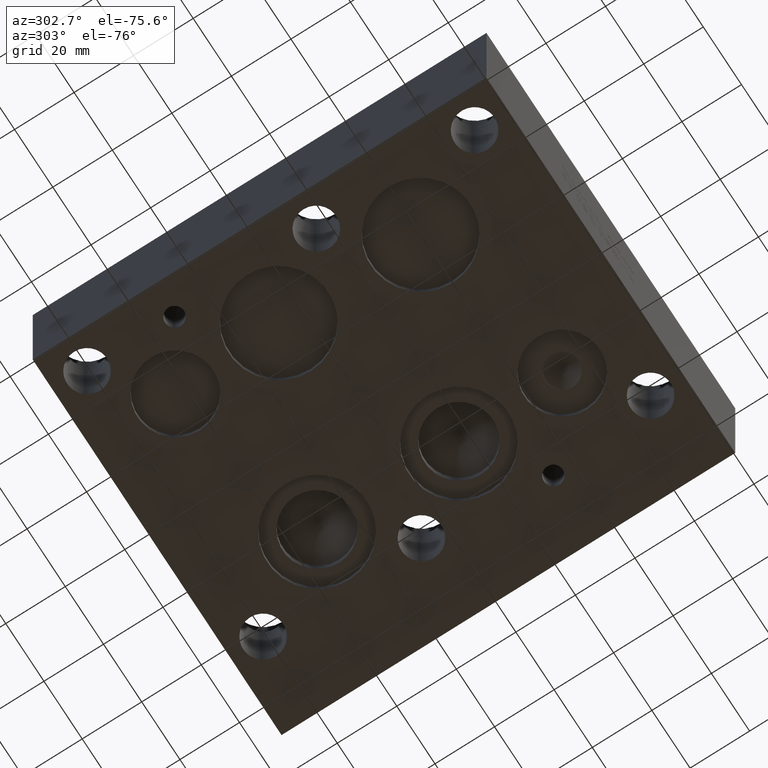
[diagram: clean part render]
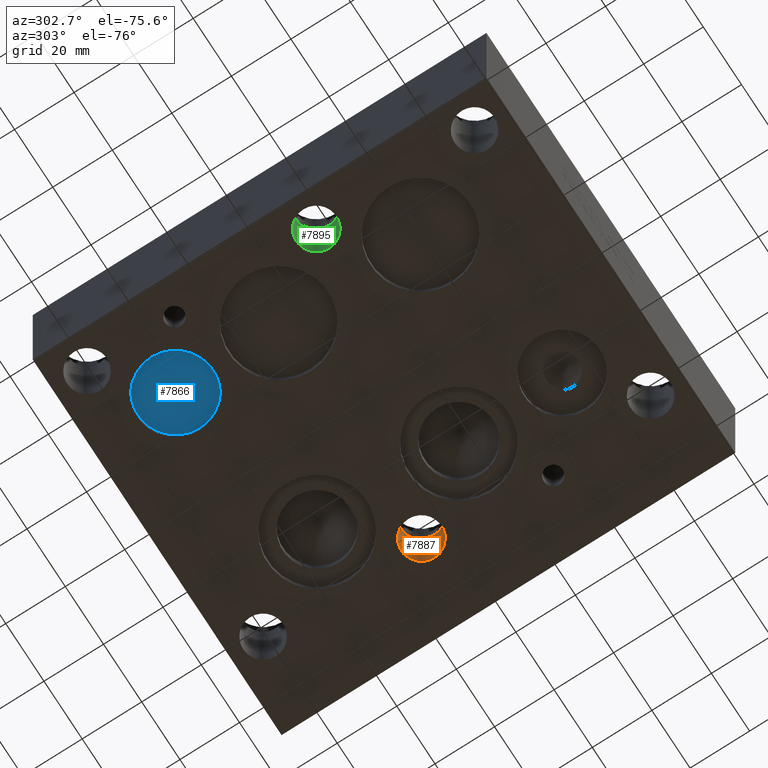
[diagram: same view with three faces highlighted in distinct colors, each labeled with its STEP entity id]
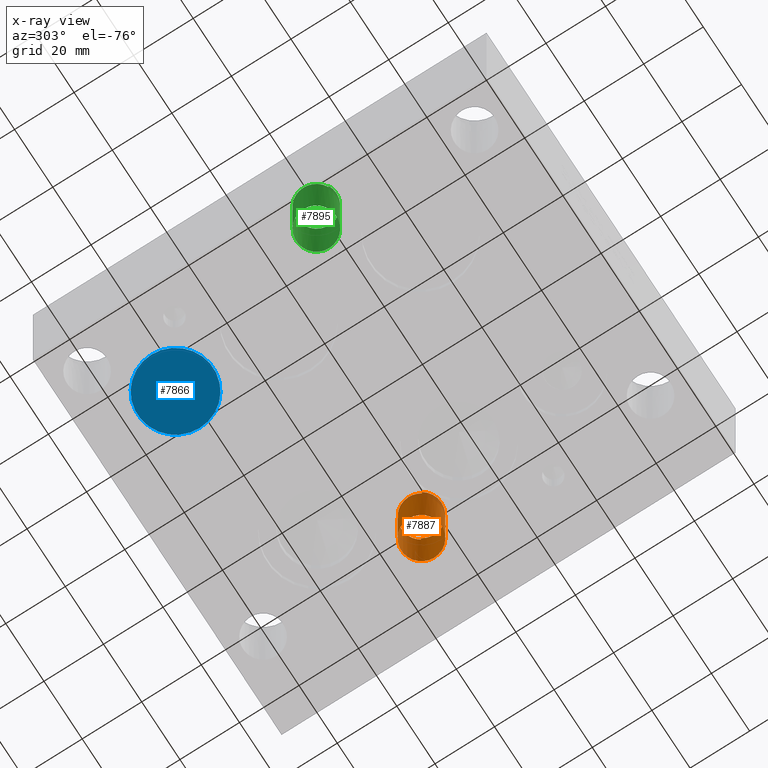
[diagram: x-ray of the same camera — body ghosted, the three highlighted faces saturated]
A machine part, auxiliary view with three faces highlighted in distinct colors.
The next image is the same camera in x-ray (body ghosted, the three faces saturated) — at least one of them is partly hidden behind the body in this view.
Their STEP definitions:

[orange] entity #7887 — the highlighted cylindrical surface (bore or boss wall) has radius 6.7437 mm, axis along (0, 0, -1).
#26=CYLINDRICAL_SURFACE('',#8256,6.7437);
#101=CIRCLE('',#8257,6.7437);
#102=CIRCLE('',#8258,6.7437);
#103=CIRCLE('',#8259,6.7437);
#428=B_SPLINE_CURVE_WITH_KNOTS('',3,(#13236,#13237,#13238,#13239,#13240,
#13241),.UNSPECIFIED.,.F.,.F.,(4,2,4),(1.65477532848342,1.77818492644608,
2.03221161432171),.UNSPECIFIED.);
#429=B_SPLINE_CURVE_WITH_KNOTS('',3,(#13248,#13249,#13250,#13251,#13252,
#13253,#13254,#13255,#13256,#13257,#13258,#13259,#13260,#13261,#13262,#13263),
 .UNSPECIFIED.,.F.,.F.,(4,2,2,2,2,2,2,4),(2.03221161432171,2.28623804041012,
2.54026446649852,2.79429068405573,3.04831690161294,3.30234338266778,3.55636986372263,
3.68480439977182),.UNSPECIFIED.);
#945=FACE_OUTER_BOUND('',#1383,.T.);
#1383=EDGE_LOOP('',(#6612,#6613,#6614,#6615,#6616,#6617,#6618,#6619,#6620));
#2168=LINE('',#13234,#2905);
#2169=LINE('',#13243,#2906);
#2170=LINE('',#13247,#2907);
#2905=VECTOR('',#9701,6.7437);
#2906=VECTOR('',#9702,10.);
#2907=VECTOR('',#9705,10.);
#3581=VERTEX_POINT('',#13229);
#3582=VERTEX_POINT('',#13230);
#3583=VERTEX_POINT('',#13233);
#3584=VERTEX_POINT('',#13235);
#3585=VERTEX_POINT('',#13242);
#3586=VERTEX_POINT('',#13244);
#3587=VERTEX_POINT('',#13246);
#4632=EDGE_CURVE('',#3581,#3582,#101,.T.);
#4633=EDGE_CURVE('',#3582,#3581,#102,.T.);
#4634=EDGE_CURVE('',#3582,#3583,#2168,.T.);
#4635=EDGE_CURVE('',#3584,#3583,#428,.T.);
#4636=EDGE_CURVE('',#3585,#3584,#2169,.T.);
#4637=EDGE_CURVE('',#3586,#3585,#103,.T.);
#4638=EDGE_CURVE('',#3587,#3586,#2170,.T.);
#4639=EDGE_CURVE('',#3583,#3587,#429,.T.);
#6612=ORIENTED_EDGE('',*,*,#4632,.F.);
#6613=ORIENTED_EDGE('',*,*,#4633,.F.);
#6614=ORIENTED_EDGE('',*,*,#4634,.T.);
#6615=ORIENTED_EDGE('',*,*,#4635,.F.);
#6616=ORIENTED_EDGE('',*,*,#4636,.F.);
#6617=ORIENTED_EDGE('',*,*,#4637,.F.);
#6618=ORIENTED_EDGE('',*,*,#4638,.F.);
#6619=ORIENTED_EDGE('',*,*,#4639,.F.);
#6620=ORIENTED_EDGE('',*,*,#4634,.F.);
#7887=ADVANCED_FACE('',(#945),#26,.F.);
#8256=AXIS2_PLACEMENT_3D('',#13228,#9695,#9696);
#8257=AXIS2_PLACEMENT_3D('',#13231,#9697,#9698);
#8258=AXIS2_PLACEMENT_3D('',#13232,#9699,#9700);
#8259=AXIS2_PLACEMENT_3D('',#13245,#9703,#9704);
#9695=DIRECTION('center_axis',(0.,0.,-1.));
#9696=DIRECTION('ref_axis',(1.,0.,0.));
#9697=DIRECTION('center_axis',(0.,0.,1.));
#9698=DIRECTION('ref_axis',(1.,0.,0.));
#9699=DIRECTION('center_axis',(0.,0.,1.));
#9700=DIRECTION('ref_axis',(1.,0.,0.));
#9701=DIRECTION('',(0.,0.,1.));
#9702=DIRECTION('',(0.,0.,-1.));
#9703=DIRECTION('center_axis',(0.,0.,-1.));
#9704=DIRECTION('ref_axis',(1.,0.,0.));
#9705=DIRECTION('',(0.,0.,1.));
#13228=CARTESIAN_POINT('Origin',(103.2002,88.0872,13.081));
#13229=CARTESIAN_POINT('',(109.9439,88.0872,0.));
#13230=CARTESIAN_POINT('',(96.4565,88.0872,0.));
#13231=CARTESIAN_POINT('Origin',(103.2002,88.0872,0.));
#13232=CARTESIAN_POINT('Origin',(103.2002,88.0872,0.));
#13233=CARTESIAN_POINT('',(96.4565,88.0872,24.6306832155167));
#13234=CARTESIAN_POINT('',(96.4565,88.0872,13.081));
#13235=CARTESIAN_POINT('',(97.5827605145586,84.3559986763772,24.638));
#13236=CARTESIAN_POINT('Ctrl Pts',(97.5827605145586,84.3559986763772,24.638));
#13237=CARTESIAN_POINT('Ctrl Pts',(97.3440077051486,84.7154484467096,24.6371541683049));
#13238=CARTESIAN_POINT('Ctrl Pts',(97.1370070841804,85.1029053739745,24.6362969008511));
#13239=CARTESIAN_POINT('Ctrl Pts',(96.6257241393568,86.3372511721544,24.6337261739882));
#13240=CARTESIAN_POINT('Ctrl Pts',(96.4565,87.2404455041508,24.6320668154513));
#13241=CARTESIAN_POINT('Ctrl Pts',(96.4565,88.0872,24.6306832155167));
#13242=CARTESIAN_POINT('',(97.5827605145586,84.3559986763772,26.162));
#13243=CARTESIAN_POINT('',(97.5827605145586,84.3559986763772,13.081));
#13244=CARTESIAN_POINT('',(108.80493948544,91.8374513236246,26.162));
#13245=CARTESIAN_POINT('Origin',(103.2002,88.0872,26.162));
#13246=CARTESIAN_POINT('',(108.80493948544,91.8374513236246,24.638));
#13247=CARTESIAN_POINT('',(108.80493948544,91.8374513236246,13.081));
#13248=CARTESIAN_POINT('Ctrl Pts',(96.4565,88.0872,24.6306832155167));
#13249=CARTESIAN_POINT('Ctrl Pts',(96.4565,88.9339536232262,24.6292996170079));
#13250=CARTESIAN_POINT('Ctrl Pts',(96.625723829094,89.8371476910143,24.6280073393768));
#13251=CARTESIAN_POINT('Ctrl Pts',(97.3139431353173,91.4986562823044,24.6260402778974));
#13252=CARTESIAN_POINT('Ctrl Pts',(97.8329386251282,92.2569708006483,24.6253655741589));
#13253=CARTESIAN_POINT('Ctrl Pts',(99.0304302760735,93.4544621017042,24.6247123908097));
#13254=CARTESIAN_POINT('Ctrl Pts',(99.7887444512582,93.973457243619,24.6246903771526));
#13255=CARTESIAN_POINT('Ctrl Pts',(101.450252536713,94.6616761901489,24.625376762923));
#13256=CARTESIAN_POINT('Ctrl Pts',(102.353446444828,94.8309,24.6260851292445));
#13257=CARTESIAN_POINT('Ctrl Pts',(104.046954433497,94.8309,24.6279316741866));
#13258=CARTESIAN_POINT('Ctrl Pts',(104.950148608466,94.6616758778878,24.6291929243907));
#13259=CARTESIAN_POINT('Ctrl Pts',(106.611656478722,93.9734566963213,24.6321274343853));
#13260=CARTESIAN_POINT('Ctrl Pts',(107.369970179314,93.4544616493381,24.6338006146866));
#13261=CARTESIAN_POINT('Ctrl Pts',(108.271437903809,92.5529941836901,24.6362526223178));
#13262=CARTESIAN_POINT('Ctrl Pts',(108.555315668739,92.2105133776683,24.63712014766));
#13263=CARTESIAN_POINT('Ctrl Pts',(108.80493948544,91.8374513236246,24.638));

[blue] entity #7866 — the highlighted planar face has unit normal (0, 0, -1).
#61=CIRCLE('',#8195,12.7);
#62=CIRCLE('',#8196,12.7);
#924=FACE_OUTER_BOUND('',#1359,.T.);
#1359=EDGE_LOOP('',(#6517,#6518));
#3534=VERTEX_POINT('',#13062);
#3535=VERTEX_POINT('',#13064);
#4574=EDGE_CURVE('',#3535,#3534,#61,.T.);
#4575=EDGE_CURVE('',#3534,#3535,#62,.T.);
#6517=ORIENTED_EDGE('',*,*,#4574,.T.);
#6518=ORIENTED_EDGE('',*,*,#4575,.T.);
#7227=PLANE('',#8197);
#7866=ADVANCED_FACE('',(#924),#7227,.T.);
#8195=AXIS2_PLACEMENT_3D('',#13065,#9557,#9558);
#8196=AXIS2_PLACEMENT_3D('',#13066,#9559,#9560);
#8197=AXIS2_PLACEMENT_3D('',#13067,#9561,#9562);
#9557=DIRECTION('center_axis',(0.,0.,-1.));
#9558=DIRECTION('ref_axis',(1.,0.,0.));
#9559=DIRECTION('center_axis',(0.,0.,-1.));
#9560=DIRECTION('ref_axis',(1.,0.,0.));
#9561=DIRECTION('center_axis',(0.,0.,-1.));
#9562=DIRECTION('ref_axis',(1.,0.,0.));
#13062=CARTESIAN_POINT('',(17.4752,123.825,2.794));
#13064=CARTESIAN_POINT('',(42.8752,123.825,2.794));
#13065=CARTESIAN_POINT('Origin',(30.1752,123.825,2.794));
#13066=CARTESIAN_POINT('Origin',(30.1752,123.825,2.794));
#13067=CARTESIAN_POINT('Origin',(30.1752,123.825,2.794));

[green] entity #7895 — the highlighted cylindrical surface (bore or boss wall) has radius 6.7437 mm, axis along (0, 0, -1).
#30=CYLINDRICAL_SURFACE('',#8279,6.7437);
#116=CIRCLE('',#8280,6.7437);
#117=CIRCLE('',#8281,6.7437);
#118=CIRCLE('',#8282,6.7437);
#438=B_SPLINE_CURVE_WITH_KNOTS('',3,(#13470,#13471,#13472,#13473,#13474,
#13475,#13476,#13477),.UNSPECIFIED.,.F.,.F.,(4,2,2,4),(1.31587528414694,
1.52415784865642,1.77818413249954,2.03221041634266),.UNSPECIFIED.);
#439=B_SPLINE_CURVE_WITH_KNOTS('',3,(#13484,#13485,#13486,#13487,#13488,
#13489,#13490,#13491,#13492,#13493,#13494,#13495,#13496,#13497),
 .UNSPECIFIED.,.F.,.F.,(4,2,2,2,2,2,4),(2.03221041634266,2.28623661248066,
2.54026280861866,2.79428912958401,3.04831545054935,3.30234185861451,3.3467468180132),
 .UNSPECIFIED.);
#953=FACE_OUTER_BOUND('',#1391,.T.);
#1391=EDGE_LOOP('',(#6660,#6661,#6662,#6663,#6664,#6665,#6666,#6667,#6668));
#2180=LINE('',#13468,#2917);
#2181=LINE('',#13479,#2918);
#2182=LINE('',#13483,#2919);
#2917=VECTOR('',#9759,6.7437);
#2918=VECTOR('',#9760,10.);
#2919=VECTOR('',#9763,10.);
#3610=VERTEX_POINT('',#13463);
#3611=VERTEX_POINT('',#13464);
#3612=VERTEX_POINT('',#13467);
#3613=VERTEX_POINT('',#13469);
#3614=VERTEX_POINT('',#13478);
#3615=VERTEX_POINT('',#13480);
#3616=VERTEX_POINT('',#13482);
#4669=EDGE_CURVE('',#3610,#3611,#116,.T.);
#4670=EDGE_CURVE('',#3611,#3610,#117,.T.);
#4671=EDGE_CURVE('',#3611,#3612,#2180,.T.);
#4672=EDGE_CURVE('',#3613,#3612,#438,.T.);
#4673=EDGE_CURVE('',#3614,#3613,#2181,.T.);
#4674=EDGE_CURVE('',#3615,#3614,#118,.T.);
#4675=EDGE_CURVE('',#3616,#3615,#2182,.T.);
#4676=EDGE_CURVE('',#3612,#3616,#439,.T.);
#6660=ORIENTED_EDGE('',*,*,#4669,.F.);
#6661=ORIENTED_EDGE('',*,*,#4670,.F.);
#6662=ORIENTED_EDGE('',*,*,#4671,.T.);
#6663=ORIENTED_EDGE('',*,*,#4672,.F.);
#6664=ORIENTED_EDGE('',*,*,#4673,.F.);
#6665=ORIENTED_EDGE('',*,*,#4674,.F.);
#6666=ORIENTED_EDGE('',*,*,#4675,.F.);
#6667=ORIENTED_EDGE('',*,*,#4676,.F.);
#6668=ORIENTED_EDGE('',*,*,#4671,.F.);
#7895=ADVANCED_FACE('',(#953),#30,.F.);
#8279=AXIS2_PLACEMENT_3D('',#13462,#9753,#9754);
#8280=AXIS2_PLACEMENT_3D('',#13465,#9755,#9756);
#8281=AXIS2_PLACEMENT_3D('',#13466,#9757,#9758);
#8282=AXIS2_PLACEMENT_3D('',#13481,#9761,#9762);
#9753=DIRECTION('center_axis',(0.,0.,-1.));
#9754=DIRECTION('ref_axis',(1.,0.,0.));
#9755=DIRECTION('center_axis',(0.,0.,1.));
#9756=DIRECTION('ref_axis',(1.,0.,0.));
#9757=DIRECTION('center_axis',(0.,0.,1.));
#9758=DIRECTION('ref_axis',(1.,0.,0.));
#9759=DIRECTION('',(0.,0.,1.));
#9760=DIRECTION('',(0.,0.,-1.));
#9761=DIRECTION('center_axis',(0.,0.,-1.));
#9762=DIRECTION('ref_axis',(1.,0.,0.));
#9763=DIRECTION('',(0.,0.,1.));
#13462=CARTESIAN_POINT('Origin',(11.1252,64.2874,13.081));
#13463=CARTESIAN_POINT('',(17.8689,64.2874,0.));
#13464=CARTESIAN_POINT('',(4.3815,64.2874,0.));
#13465=CARTESIAN_POINT('Origin',(11.1252,64.2874,0.));
#13466=CARTESIAN_POINT('Origin',(11.1252,64.2874,0.));
#13467=CARTESIAN_POINT('',(4.3815,64.2874,24.6306693809278));
#13468=CARTESIAN_POINT('',(4.3815,64.2874,13.081));
#13469=CARTESIAN_POINT('',(8.10297734729191,58.2588296945745,24.638));
#13470=CARTESIAN_POINT('Ctrl Pts',(8.10297734729191,58.2588296945745,24.638));
#13471=CARTESIAN_POINT('Ctrl Pts',(7.4448595713334,58.588755091457,24.6371050739507));
#13472=CARTESIAN_POINT('Ctrl Pts',(6.84760992886108,59.0279579853392,24.6362165950325));
#13473=CARTESIAN_POINT('Ctrl Pts',(5.75793834344718,60.117629759919,24.6344382330969));
#13474=CARTESIAN_POINT('Ctrl Pts',(5.23894319609901,60.8759436863531,24.6334606306565));
#13475=CARTESIAN_POINT('Ctrl Pts',(4.55072402179373,62.53745172837,24.6318067889051));
#13476=CARTESIAN_POINT('Ctrl Pts',(4.3815,63.4406458461242,24.6311305823616));
#13477=CARTESIAN_POINT('Ctrl Pts',(4.3815,64.2874,24.6306693809278));
#13478=CARTESIAN_POINT('',(8.10297734729191,58.2588296945745,26.162));
#13479=CARTESIAN_POINT('',(8.10297734729191,58.2588296945745,13.081));
#13480=CARTESIAN_POINT('',(14.1347226527088,70.3223203054252,26.162));
#13481=CARTESIAN_POINT('Origin',(11.1252,64.2874,26.162));
#13482=CARTESIAN_POINT('',(14.1347226527088,70.3223203054252,24.638));
#13483=CARTESIAN_POINT('',(14.1347226527088,70.3223203054252,13.081));
#13484=CARTESIAN_POINT('Ctrl Pts',(4.3815,64.2874,24.6306693809278));
#13485=CARTESIAN_POINT('Ctrl Pts',(4.3815,65.1341538615255,24.6302081796533));
#13486=CARTESIAN_POINT('Ctrl Pts',(4.55072391784562,66.0373478905302,24.6299005041594));
#13487=CARTESIAN_POINT('Ctrl Pts',(5.23894301416692,67.6988560045708,24.6297452013462));
#13488=CARTESIAN_POINT('Ctrl Pts',(5.75793819338702,68.4571700892988,24.6298975787333));
#13489=CARTESIAN_POINT('Ctrl Pts',(6.95542926669843,69.6546613719376,24.6305498906727));
#13490=CARTESIAN_POINT('Ctrl Pts',(7.71374355696036,70.1736567593677,24.6310933026002));
#13491=CARTESIAN_POINT('Ctrl Pts',(9.37525197379267,70.8618760708007,24.6325279759706));
#13492=CARTESIAN_POINT('Ctrl Pts',(10.278446098239,71.0311,24.6334192045896));
#13493=CARTESIAN_POINT('Ctrl Pts',(11.9719541920936,71.0311,24.6352622688953));
#13494=CARTESIAN_POINT('Ctrl Pts',(12.8751484043527,70.8618759675609,24.6363369503993));
#13495=CARTESIAN_POINT('Ctrl Pts',(13.8511221445714,70.4576143502944,24.637618078485));
#13496=CARTESIAN_POINT('Ctrl Pts',(13.9942544230238,70.3923696677743,24.6378091885517));
#13497=CARTESIAN_POINT('Ctrl Pts',(14.1347226527088,70.3223203054252,24.638));